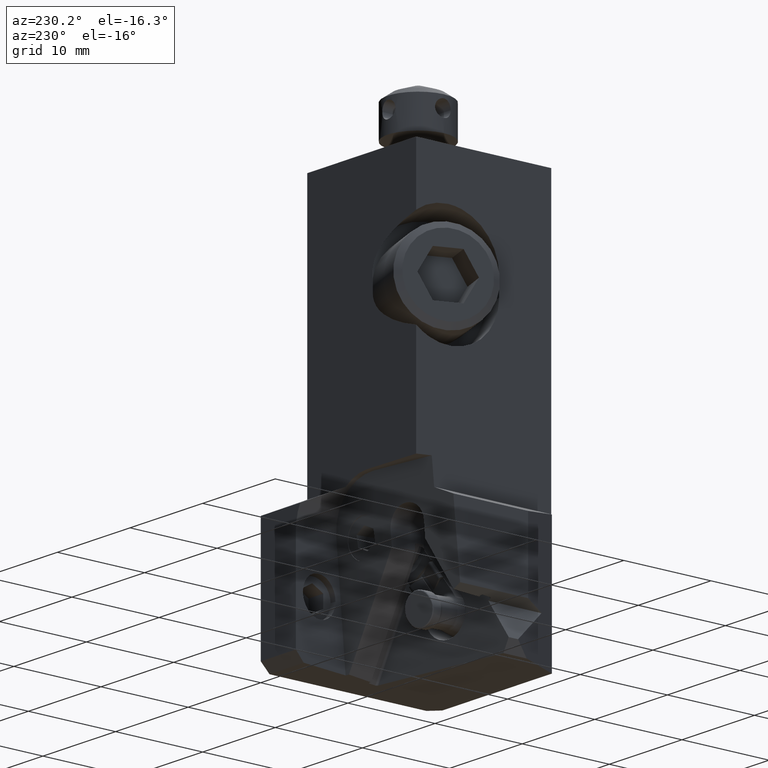
[diagram: clean part render]
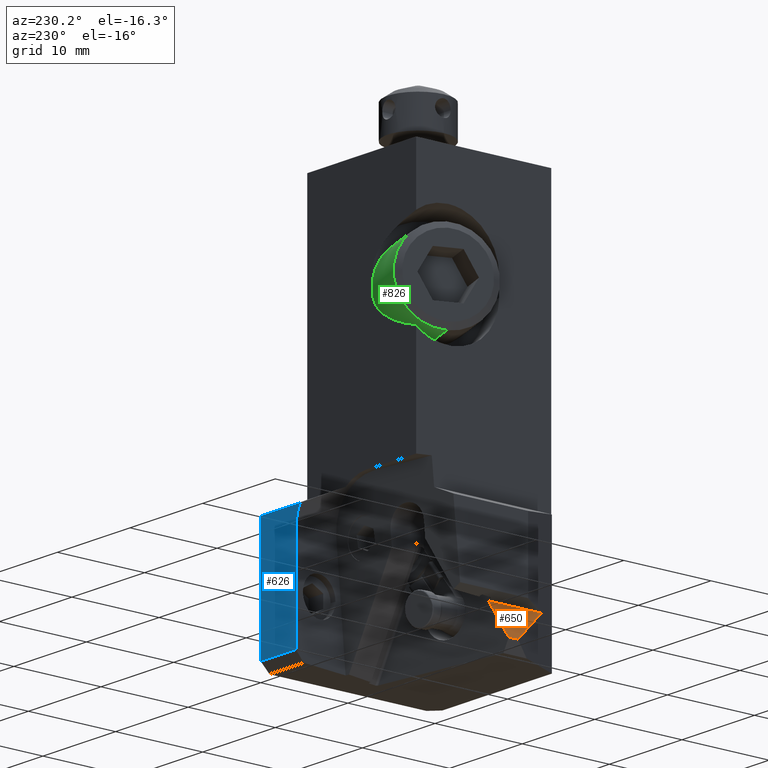
[diagram: same view with three faces highlighted in distinct colors, each labeled with its STEP entity id]
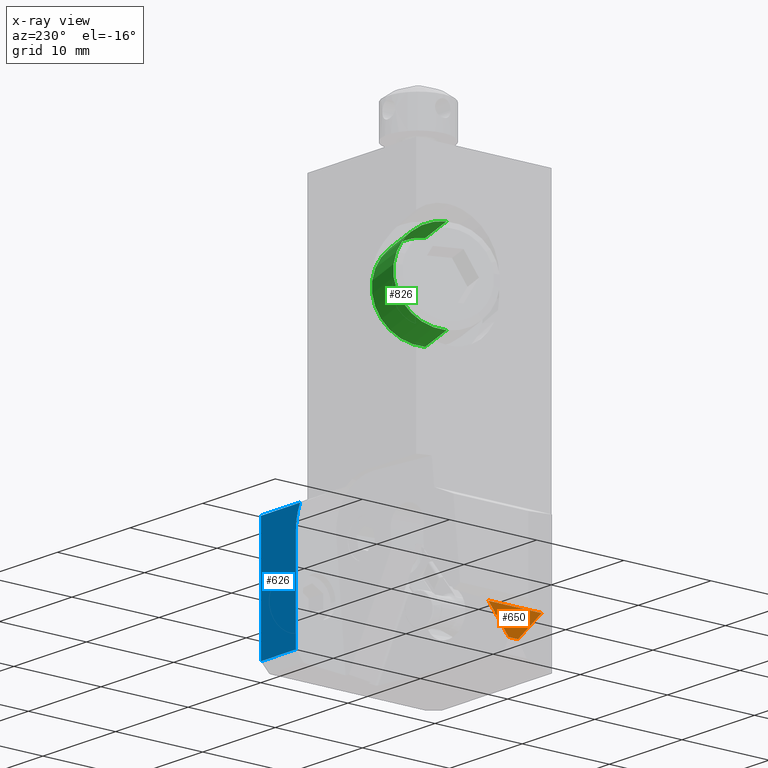
[diagram: x-ray of the same camera — body ghosted, the three highlighted faces saturated]
A machine part, auxiliary view with three faces highlighted in distinct colors.
The next image is the same camera in x-ray (body ghosted, the three faces saturated) — at least one of them is partly hidden behind the body in this view.
Their STEP definitions:

[orange] entity #650 — the highlighted planar face has unit normal (0.8737, 0, -0.4865).
#429=FACE_OUTER_BOUND('',#1063,.T.);
#650=ADVANCED_FACE('',(#429),#867,.F.);
#867=PLANE('',#4416);
#1063=EDGE_LOOP('',(#1538,#1539,#1540,#1541));
#1538=ORIENTED_EDGE('',*,*,#3018,.F.);
#1539=ORIENTED_EDGE('',*,*,#2959,.F.);
#1540=ORIENTED_EDGE('',*,*,#2974,.F.);
#1541=ORIENTED_EDGE('',*,*,#3014,.F.);
#2548=VERTEX_POINT('',#6340);
#2549=VERTEX_POINT('',#6342);
#2560=VERTEX_POINT('',#6370);
#2584=VERTEX_POINT('',#6447);
#2959=EDGE_CURVE('',#2548,#2549,#3525,.T.);
#2974=EDGE_CURVE('',#2560,#2548,#3538,.T.);
#3014=EDGE_CURVE('',#2584,#2560,#3567,.T.);
#3018=EDGE_CURVE('',#2549,#2584,#3571,.T.);
#3525=LINE('',#6341,#3887);
#3538=LINE('',#6371,#3900);
#3567=LINE('',#6446,#3929);
#3571=LINE('',#6453,#3933);
#3887=VECTOR('',#4994,1.);
#3900=VECTOR('',#5017,1.);
#3929=VECTOR('',#5092,1.);
#3933=VECTOR('',#5098,1.);
#4416=AXIS2_PLACEMENT_3D('',#6455,#5101,#5102);
#4994=DIRECTION('',(-6.875148080465E-14,-1.,0.));
#5017=DIRECTION('',(0.481217398646883,0.146572302463595,0.86426059460677));
#5092=DIRECTION('',(-9.821147700858E-13,1.,1.318274859176E-14));
#5098=DIRECTION('',(-0.336631989121892,0.721909630336783,-0.604586957787586));
#5101=DIRECTION('',(0.873696552639069,0.,-0.486471308410483));
#5102=DIRECTION('',(-0.486471308410483,0.,-0.873696552639069));
#6340=CARTESIAN_POINT('',(-17.00569089558,8.051143033415,-41.47326227771));
#6341=CARTESIAN_POINT('',(-17.00569089558,8.051143033415,-41.47326227771));
#6342=CARTESIAN_POINT('',(-17.00569089558,1.953525801146,-41.47326227771));
#6370=CARTESIAN_POINT('',(-19.05527729582,7.426866773609,-45.15429452207));
#6371=CARTESIAN_POINT('',(-19.05527729582,7.426866773609,-45.15429452207));
#6446=CARTESIAN_POINT('',(-19.05527729582,6.348878020635,-45.15429452207));
#6447=CARTESIAN_POINT('',(-19.05527729582,6.348878020634,-45.15429452207));
#6453=CARTESIAN_POINT('',(-17.00569089558,1.953525801146,-41.47326227771));
#6455=CARTESIAN_POINT('',(-18.0304840957,5.00233441728,-43.31377839989));

[blue] entity #626 — the highlighted planar face has unit normal (0, 1, 0).
#407=FACE_OUTER_BOUND('',#1037,.T.);
#626=ADVANCED_FACE('',(#407),#850,.T.);
#850=PLANE('',#4369);
#964=ELLIPSE('',#4368,5.06607333377167,5.000000000005);
#1037=EDGE_LOOP('',(#1373,#1374,#1375,#1376,#1377));
#1373=ORIENTED_EDGE('',*,*,#2927,.T.);
#1374=ORIENTED_EDGE('',*,*,#2928,.T.);
#1375=ORIENTED_EDGE('',*,*,#2924,.F.);
#1376=ORIENTED_EDGE('',*,*,#2929,.T.);
#1377=ORIENTED_EDGE('',*,*,#2930,.T.);
#2518=VERTEX_POINT('',#6265);
#2520=VERTEX_POINT('',#6269);
#2523=VERTEX_POINT('',#6277);
#2524=VERTEX_POINT('',#6278);
#2525=VERTEX_POINT('',#6281);
#2924=EDGE_CURVE('',#2520,#2518,#3503,.T.);
#2927=EDGE_CURVE('',#2523,#2524,#964,.T.);
#2928=EDGE_CURVE('',#2524,#2518,#3504,.T.);
#2929=EDGE_CURVE('',#2520,#2525,#3505,.T.);
#2930=EDGE_CURVE('',#2525,#2523,#3506,.T.);
#3503=LINE('',#6270,#3865);
#3504=LINE('',#6279,#3866);
#3505=LINE('',#6280,#3867);
#3506=LINE('',#6282,#3868);
#3865=VECTOR('',#4930,1.);
#3866=VECTOR('',#4939,1.);
#3867=VECTOR('',#4940,1.);
#3868=VECTOR('',#4941,1.);
#4368=AXIS2_PLACEMENT_3D('',#6276,#4937,#4938);
#4369=AXIS2_PLACEMENT_3D('',#6283,#4942,#4943);
#4930=DIRECTION('',(0.,6.597352392443E-14,1.));
#4937=DIRECTION('',(0.,-1.,0.));
#4938=DIRECTION('',(-0.80715316101554,0.,-0.590342082747471));
#4939=DIRECTION('',(1.,-5.82929929813E-14,-2.305520621283E-13));
#4940=DIRECTION('',(-1.,0.,0.));
#4941=DIRECTION('',(1.287072622239E-13,1.418439458447E-14,1.));
#4942=DIRECTION('',(0.,1.,0.));
#4943=DIRECTION('',(0.,0.,-1.));
#6265=CARTESIAN_POINT('',(0.,20.,-32.0983844617));
#6269=CARTESIAN_POINT('',(0.,20.,-45.45333262775));
#6270=CARTESIAN_POINT('',(0.,20.,-45.45333262775));
#6276=CARTESIAN_POINT('',(-9.88570196522559,20.,-34.4956540067227));
#6277=CARTESIAN_POINT('',(-4.84255716232119,20.,-34.4328127926479));
#6278=CARTESIAN_POINT('',(-5.42417709645927,20.,-32.0983844616965));
#6279=CARTESIAN_POINT('',(-5.424177096459,20.,-32.0983844617));
#6280=CARTESIAN_POINT('',(0.,20.,-45.45333262775));
#6281=CARTESIAN_POINT('',(-4.842557162324,20.,-45.45333262775));
#6282=CARTESIAN_POINT('',(-4.842557162324,20.,-45.45333262775));
#6283=CARTESIAN_POINT('',(-2.712088548229,20.,-38.77585854472));

[green] entity #826 — the highlighted cylindrical surface (partial cylindrical patch) has radius 5 mm, axis along (0.9397, -0.342, 0).
#224=CYLINDRICAL_SURFACE('',#4747,5.);
#391=CIRCLE('',#4744,5.);
#392=CIRCLE('',#4746,4.999999999996);
#599=FACE_OUTER_BOUND('',#1245,.T.);
#826=ADVANCED_FACE('',(#599),#224,.T.);
#1245=EDGE_LOOP('',(#2412,#2413,#2414,#2415));
#2412=ORIENTED_EDGE('',*,*,#3432,.T.);
#2413=ORIENTED_EDGE('',*,*,#3433,.T.);
#2414=ORIENTED_EDGE('',*,*,#3434,.T.);
#2415=ORIENTED_EDGE('',*,*,#3435,.T.);
#2837=VERTEX_POINT('',#7884);
#2838=VERTEX_POINT('',#7885);
#2839=VERTEX_POINT('',#7889);
#2840=VERTEX_POINT('',#7891);
#3432=EDGE_CURVE('',#2838,#2837,#391,.T.);
#3433=EDGE_CURVE('',#2837,#2839,#3799,.T.);
#3434=EDGE_CURVE('',#2839,#2840,#392,.T.);
#3435=EDGE_CURVE('',#2840,#2838,#3800,.T.);
#3799=LINE('',#7888,#4161);
#3800=LINE('',#7892,#4162);
#4161=VECTOR('',#5988,1.);
#4162=VECTOR('',#5991,1.);
#4744=AXIS2_PLACEMENT_3D('',#7886,#5984,#5985);
#4746=AXIS2_PLACEMENT_3D('',#7890,#5989,#5990);
#4747=AXIS2_PLACEMENT_3D('',#7893,#5992,#5993);
#5984=DIRECTION('',(-0.939692620787022,0.342020143322608,0.));
#5985=DIRECTION('',(-1.42975908890008E-12,-3.92845478369708E-12,1.));
#5988=DIRECTION('',(-0.93969262078645,0.342020143324182,1.15463194560994E-13));
#5989=DIRECTION('',(0.939692620784989,-0.342020143328196,0.));
#5990=DIRECTION('',(3.3653635433977E-13,9.24607612696378E-13,-1.));
#5991=DIRECTION('',(0.939692620786774,-0.342020143323291,9.54791801176773E-14));
#5992=DIRECTION('',(0.939692620787022,-0.342020143322608,0.));
#5993=DIRECTION('',(2.44249065417534E-13,6.72031874593415E-13,1.));
#7884=CARTESIAN_POINT('',(-10.36184427528,9.771402888315,-17.));
#7885=CARTESIAN_POINT('',(-10.36184427528,9.771402888312,-7.));
#7886=CARTESIAN_POINT('',(-10.36184427526,9.771402888321,-12.));
#7888=CARTESIAN_POINT('',(-10.36184427528,9.771402888315,-17.));
#7889=CARTESIAN_POINT('',(-15.62412295169,11.68671569093,-17.));
#7890=CARTESIAN_POINT('',(-15.62412295169,11.68671569093,-12.));
#7891=CARTESIAN_POINT('',(-15.62412295169,11.68671569092,-7.000000000001));
#7892=CARTESIAN_POINT('',(-15.62412295169,11.68671569092,-7.000000000001));
#7893=CARTESIAN_POINT('',(-15.72936852521,11.72502194698,-12.));